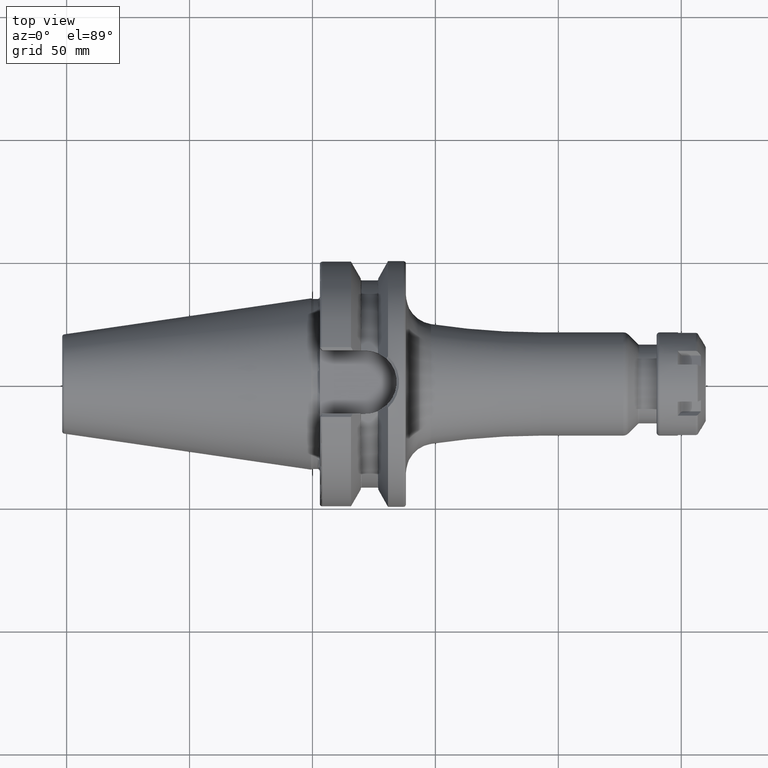
[diagram: clean part render]
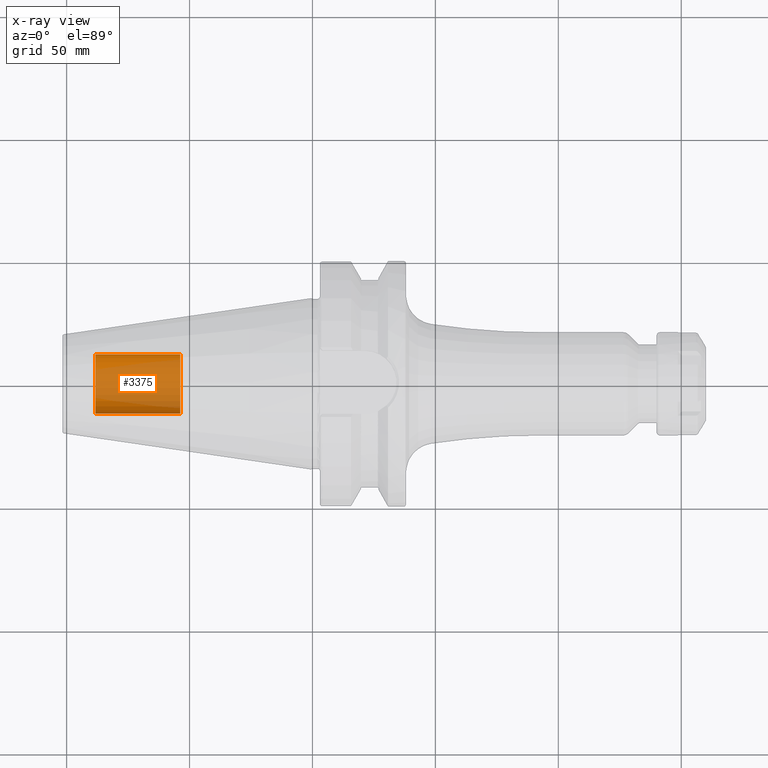
[diagram: x-ray — body ghosted, one internal face saturated and labeled with its STEP entity id]
A machine part, top view, then the same camera in x-ray: the body is ghosted and one INTERNAL B-rep face — a face not visible from any outside direction — is saturated and labeled: STEP entity #3375.
In plain terms, the highlighted cylindrical surface (edge-blend (fillet) strip) has radius 12.0032 mm, axis along (1, 0, 0).
Its self-contained STEP definition (entity closure, byte-faithful):
#3310=CARTESIAN_POINT('',(-8.835E1,0.E0,0.E0));
#3311=DIRECTION('',(-1.E0,0.E0,0.E0));
#3312=DIRECTION('',(0.E0,1.E0,0.E0));
#3313=AXIS2_PLACEMENT_3D('',#3310,#3311,#3312);
#3315=DIRECTION('',(1.E0,0.E0,0.E0));
#3316=VECTOR('',#3315,3.455E1);
#3317=CARTESIAN_POINT('',(-8.835E1,-1.200325E1,0.E0));
#3318=LINE('',#3317,#3316);
#3324=DIRECTION('',(1.E0,0.E0,0.E0));
#3325=VECTOR('',#3324,3.455E1);
#3326=CARTESIAN_POINT('',(-8.835E1,1.200325E1,0.E0));
#3327=LINE('',#3326,#3325);
#3333=CARTESIAN_POINT('',(-5.38E1,0.E0,0.E0));
#3334=DIRECTION('',(1.E0,0.E0,0.E0));
#3335=DIRECTION('',(0.E0,-1.E0,0.E0));
#3336=AXIS2_PLACEMENT_3D('',#3333,#3334,#3335);
#3348=CARTESIAN_POINT('',(-8.835E1,1.200325E1,0.E0));
#3349=CARTESIAN_POINT('',(-8.835E1,-1.200325E1,0.E0));
#3350=VERTEX_POINT('',#3348);
#3351=VERTEX_POINT('',#3349);
#3352=CARTESIAN_POINT('',(-5.38E1,1.200325E1,0.E0));
#3353=CARTESIAN_POINT('',(-5.38E1,-1.200325E1,0.E0));
#3354=VERTEX_POINT('',#3352);
#3355=VERTEX_POINT('',#3353);
#3360=CARTESIAN_POINT('',(-8.835E1,0.E0,0.E0));
#3361=DIRECTION('',(1.E0,0.E0,0.E0));
#3362=DIRECTION('',(0.E0,1.E0,0.E0));
#3363=AXIS2_PLACEMENT_3D('',#3360,#3361,#3362);
#3364=CYLINDRICAL_SURFACE('',#3363,1.200325E1);
#3366=ORIENTED_EDGE('',*,*,#3365,.T.);
#3368=ORIENTED_EDGE('',*,*,#3367,.T.);
#3370=ORIENTED_EDGE('',*,*,#3369,.T.);
#3372=ORIENTED_EDGE('',*,*,#3371,.F.);
#3373=EDGE_LOOP('',(#3366,#3368,#3370,#3372));
#3374=FACE_OUTER_BOUND('',#3373,.F.);
#3375=ADVANCED_FACE('',(#3374),#3364,.T.);
#3314=CIRCLE('',#3313,1.200325E1);
#3337=CIRCLE('',#3336,1.200325E1);
#3365=EDGE_CURVE('',#3350,#3351,#3314,.T.);
#3367=EDGE_CURVE('',#3351,#3355,#3318,.T.);
#3369=EDGE_CURVE('',#3355,#3354,#3337,.T.);
#3371=EDGE_CURVE('',#3350,#3354,#3327,.T.);